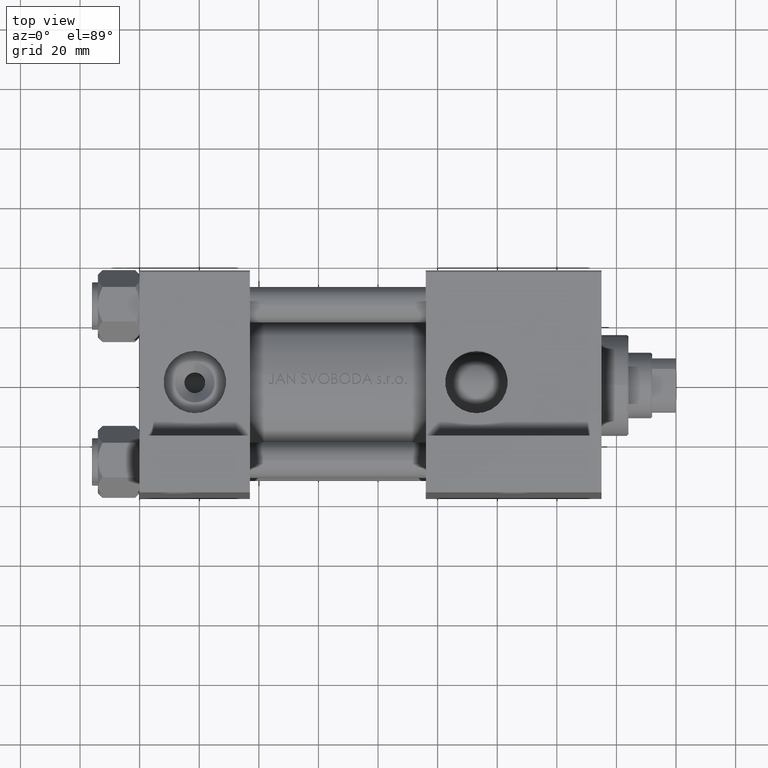
[diagram: clean part render]
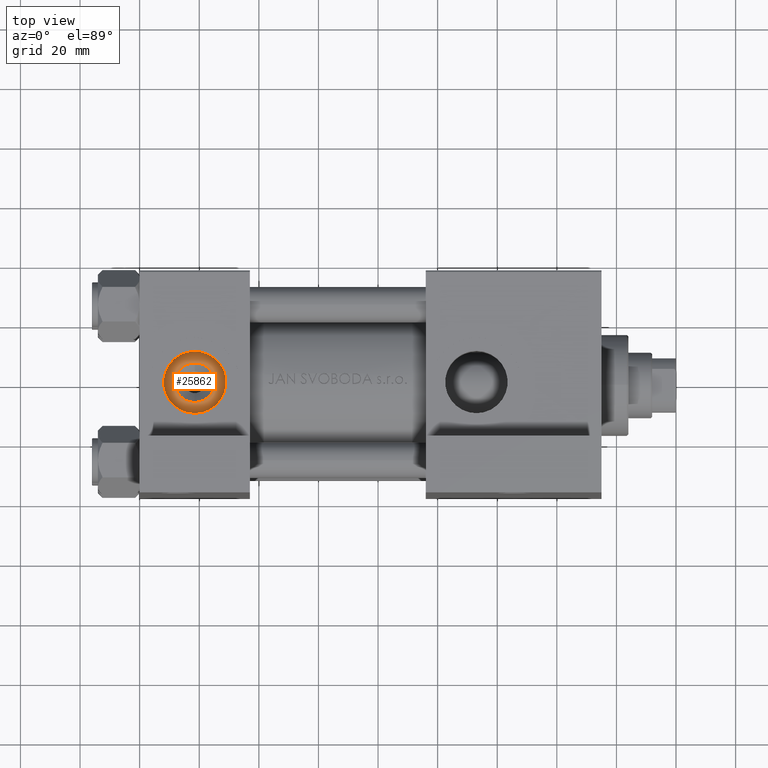
[diagram: same view with one face highlighted and labeled with its STEP entity id]
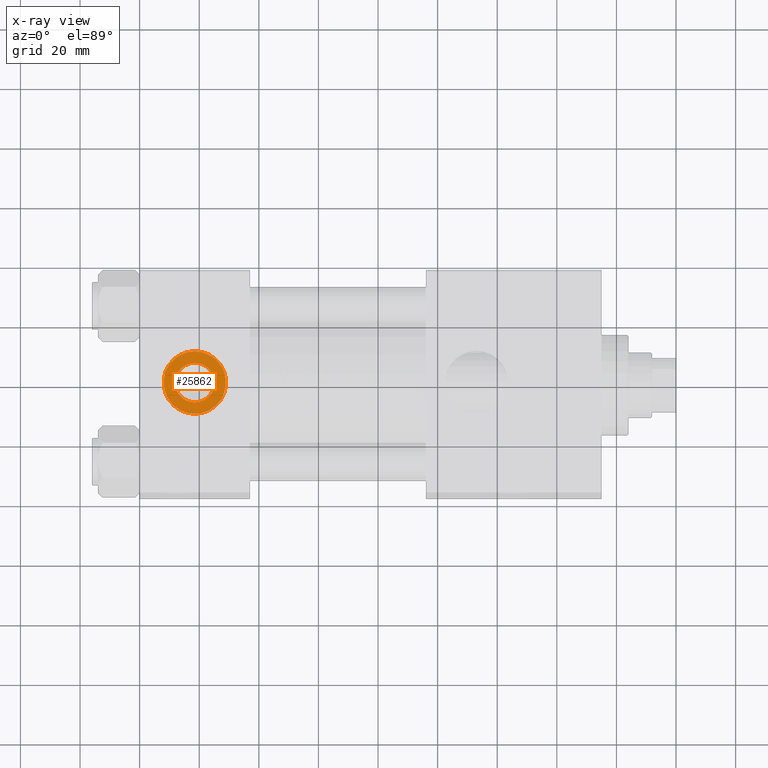
[diagram: x-ray of the same camera — body ghosted, the highlighted face saturated]
A machine part, top view. The second image highlights one B-rep face of the part: STEP entity #25862.
The next image is the same camera in x-ray: the body ghosted, the highlighted face saturated — about 0% of this face is hidden behind the body in this view.
In plain terms, the highlighted planar face has unit normal (0, -0, 1).
Its self-contained STEP definition (entity closure, byte-faithful):
#768 = DIRECTION ( 'NONE',  ( 0.000000000000000000, 8.673617379884036705E-17, -1.000000000000000000 ) ) ;
#980 = DIRECTION ( 'NONE',  ( 0.000000000000000000, -1.000000000000000000, -8.673617379884036705E-17 ) ) ;
#1318 = DIRECTION ( 'NONE',  ( 0.000000000000000000, 0.000000000000000000, -1.000000000000000000 ) ) ;
#1793 = AXIS2_PLACEMENT_3D ( 'NONE', #33397, #17722, #14241 ) ;
#2428 = VERTEX_POINT ( 'NONE', #38762 ) ;
#3260 = PLANE ( 'NONE',  #42832 ) ;
#3530 = AXIS2_PLACEMENT_3D ( 'NONE', #19421, #980, #34609 ) ;
#3561 = DIRECTION ( 'NONE',  ( 0.000000000000000000, 0.000000000000000000, -1.000000000000000000 ) ) ;
#4028 = CARTESIAN_POINT ( 'NONE',  ( 18.50000000000000000, -26.60000000000000497, -6.640000000000092939 ) ) ;
#7003 = FACE_BOUND ( 'NONE', #15210, .T. ) ;
#7381 = CIRCLE ( 'NONE', #1793, 6.640000000000092051 ) ;
#8738 = DIRECTION ( 'NONE',  ( 0.000000000000000000, -1.000000000000000000, -8.673617379884036705E-17 ) ) ;
#10003 = ORIENTED_EDGE ( 'NONE', *, *, #38901, .T. ) ;
#10547 = AXIS2_PLACEMENT_3D ( 'NONE', #14312, #19018, #3561 ) ;
#14241 = DIRECTION ( 'NONE',  ( 0.000000000000000000, 0.000000000000000000, -1.000000000000000000 ) ) ;
#14312 = CARTESIAN_POINT ( 'NONE',  ( 18.50000000000000000, -26.60000000000000497, -2.524022657546253928E-15 ) ) ;
#14784 = VERTEX_POINT ( 'NONE', #4028 ) ;
#15210 = EDGE_LOOP ( 'NONE', ( #49288, #10003 ) ) ;
#15709 = ORIENTED_EDGE ( 'NONE', *, *, #23219, .T. ) ;
#15741 = EDGE_CURVE ( 'NONE', #2428, #44485, #40133, .T. ) ;
#16275 = DIRECTION ( 'NONE',  ( 0.000000000000000000, -1.000000000000000000, -8.673617379884036705E-17 ) ) ;
#17722 = DIRECTION ( 'NONE',  ( -0.000000000000000000, 1.000000000000000000, 8.673617379884036705E-17 ) ) ;
#18251 = ORIENTED_EDGE ( 'NONE', *, *, #15741, .T. ) ;
#19018 = DIRECTION ( 'NONE',  ( -0.000000000000000000, 1.000000000000000000, 8.673617379884036705E-17 ) ) ;
#19421 = CARTESIAN_POINT ( 'NONE',  ( 18.50000000000000000, -26.60000000000000497, -2.524022657546255111E-15 ) ) ;
#23219 = EDGE_CURVE ( 'NONE', #44485, #2428, #27660, .T. ) ;
#24477 = CARTESIAN_POINT ( 'NONE',  ( 18.50000000000000000, -26.60000000000000497, -2.524022657546255111E-15 ) ) ;
#25862 = ADVANCED_FACE ( 'NONE', ( #7003, #37389 ), #3260, .T. ) ;
#26511 = CARTESIAN_POINT ( 'NONE',  ( 18.50000000000000000, -26.60000000000000497, 6.640000000000088498 ) ) ;
#27660 = CIRCLE ( 'NONE', #42764, 10.48000000000000043 ) ;
#32022 = CIRCLE ( 'NONE', #10547, 6.640000000000092051 ) ;
#33397 = CARTESIAN_POINT ( 'NONE',  ( 18.50000000000000000, -26.60000000000000497, -2.524022657546253928E-15 ) ) ;
#33655 = CARTESIAN_POINT ( 'NONE',  ( 18.50000000000000000, -26.60000000000000497, -2.524022657546255111E-15 ) ) ;
#34609 = DIRECTION ( 'NONE',  ( 0.000000000000000000, 0.000000000000000000, -1.000000000000000000 ) ) ;
#35510 = VERTEX_POINT ( 'NONE', #26511 ) ;
#37389 = FACE_OUTER_BOUND ( 'NONE', #48566, .T. ) ;
#37805 = EDGE_CURVE ( 'NONE', #14784, #35510, #7381, .T. ) ;
#38762 = CARTESIAN_POINT ( 'NONE',  ( 18.50000000000000000, -26.60000000000000497, 10.47999999999999865 ) ) ;
#38901 = EDGE_CURVE ( 'NONE', #35510, #14784, #32022, .T. ) ;
#40133 = CIRCLE ( 'NONE', #3530, 10.48000000000000043 ) ;
#42764 = AXIS2_PLACEMENT_3D ( 'NONE', #24477, #16275, #1318 ) ;
#42832 = AXIS2_PLACEMENT_3D ( 'NONE', #33655, #8738, #768 ) ;
#44333 = CARTESIAN_POINT ( 'NONE',  ( 18.50000000000000000, -26.60000000000000497, -10.48000000000000220 ) ) ;
#44485 = VERTEX_POINT ( 'NONE', #44333 ) ;
#48566 = EDGE_LOOP ( 'NONE', ( #15709, #18251 ) ) ;
#49288 = ORIENTED_EDGE ( 'NONE', *, *, #37805, .T. ) ;